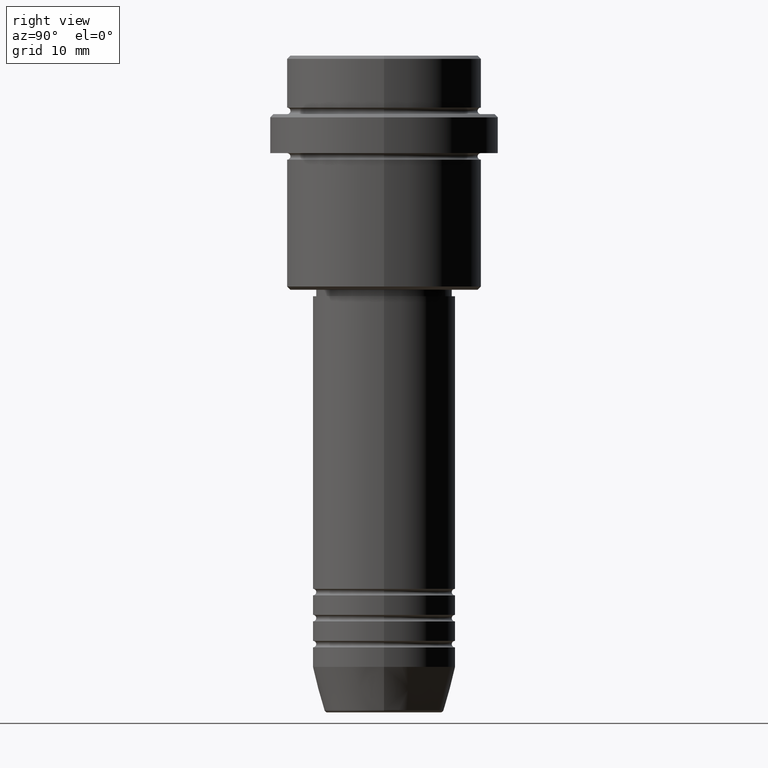
[diagram: clean part render]
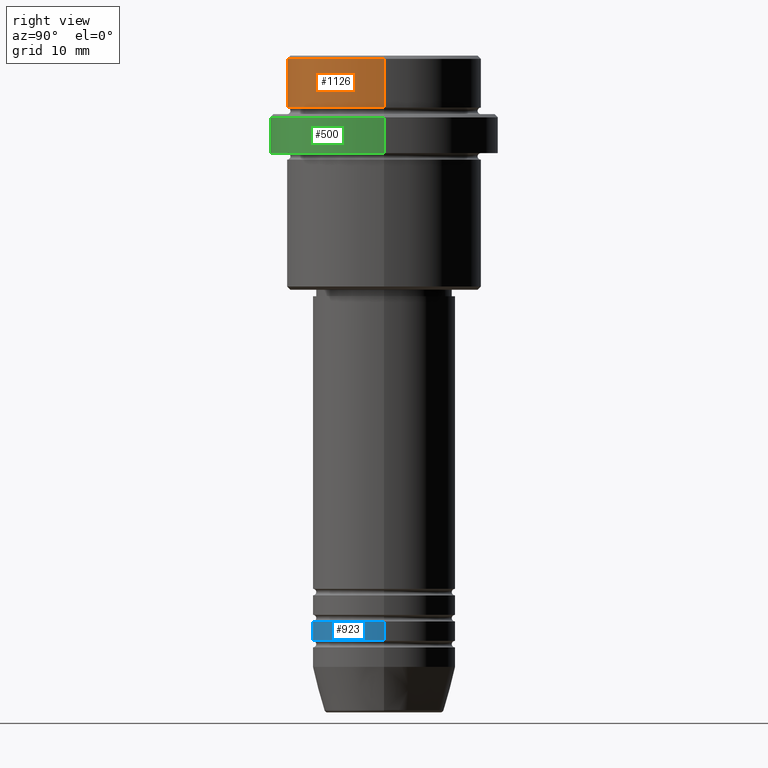
[diagram: same view with three faces highlighted in distinct colors, each labeled with its STEP entity id]
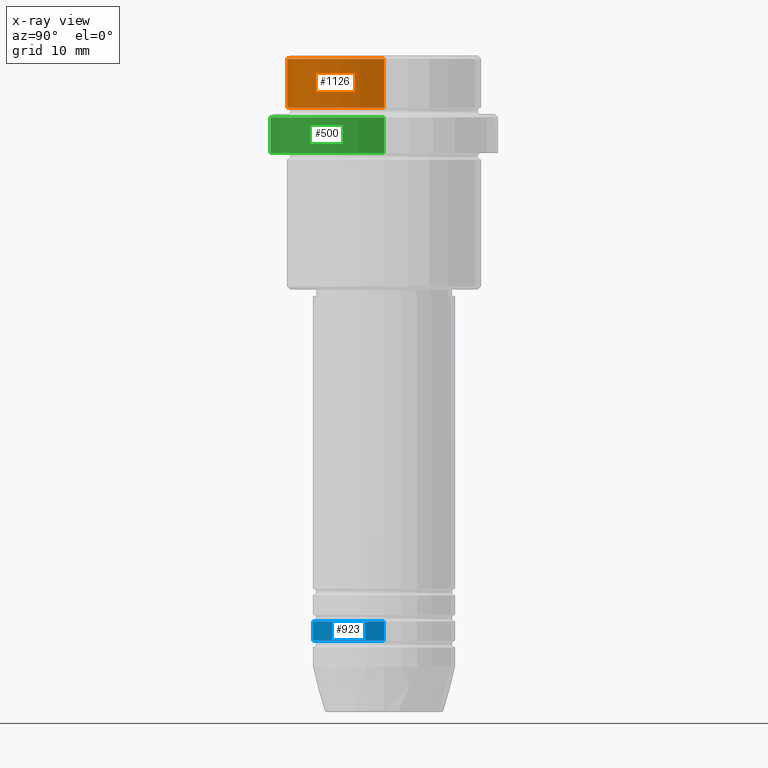
[diagram: x-ray of the same camera — body ghosted, the three highlighted faces saturated]
A machine part, right view with three faces highlighted in distinct colors.
The next image is the same camera in x-ray (body ghosted, the three faces saturated) — at least one of them is partly hidden behind the body in this view.
Their STEP definitions:

[orange] entity #1126 — the highlighted cylindrical surface (partial cylindrical patch) has radius 15 mm, axis along (-0, -0, 1).
#2 = DIRECTION ( 'NONE',  ( 1.000000000000000000, 0.000000000000000000, 0.000000000000000000 ) ) ;
#17 = DIRECTION ( 'NONE',  ( -0.000000000000000000, -0.000000000000000000, 1.000000000000000000 ) ) ;
#79 = CARTESIAN_POINT ( 'NONE',  ( -15.00000000000000000, 1.836970198721029589E-15, -0.4999999999999692468 ) ) ;
#110 = ORIENTED_EDGE ( 'NONE', *, *, #1355, .T. ) ;
#147 = CARTESIAN_POINT ( 'NONE',  ( -15.00000000000000000, 1.836970198721029589E-15, 0.000000000000000000 ) ) ;
#152 = DIRECTION ( 'NONE',  ( 1.000000000000000000, 0.000000000000000000, 0.000000000000000000 ) ) ;
#220 = LINE ( 'NONE', #533, #1142 ) ;
#283 = CARTESIAN_POINT ( 'NONE',  ( -15.00000000000000000, 1.836970198721029589E-15, -7.999999999999998224 ) ) ;
#306 = FACE_OUTER_BOUND ( 'NONE', #1070, .T. ) ;
#355 = ORIENTED_EDGE ( 'NONE', *, *, #390, .T. ) ;
#357 = CARTESIAN_POINT ( 'NONE',  ( 0.000000000000000000, 0.000000000000000000, -0.4999999999999692468 ) ) ;
#390 = EDGE_CURVE ( 'NONE', #1385, #561, #1325, .T. ) ;
#438 = DIRECTION ( 'NONE',  ( -0.000000000000000000, -0.000000000000000000, 1.000000000000000000 ) ) ;
#531 = CARTESIAN_POINT ( 'NONE',  ( 15.00000000000000000, 0.000000000000000000, -7.999999999999998224 ) ) ;
#533 = CARTESIAN_POINT ( 'NONE',  ( 15.00000000000000000, 0.000000000000000000, 0.000000000000000000 ) ) ;
#547 = VECTOR ( 'NONE', #17, 1000.000000000000000 ) ;
#561 = VERTEX_POINT ( 'NONE', #79 ) ;
#574 = DIRECTION ( 'NONE',  ( 0.000000000000000000, 0.000000000000000000, -1.000000000000000000 ) ) ;
#661 = DIRECTION ( 'NONE',  ( -0.000000000000000000, -0.000000000000000000, 1.000000000000000000 ) ) ;
#695 = DIRECTION ( 'NONE',  ( -0.000000000000000000, -0.000000000000000000, 1.000000000000000000 ) ) ;
#789 = EDGE_CURVE ( 'NONE', #1130, #1385, #220, .T. ) ;
#794 = LINE ( 'NONE', #147, #547 ) ;
#837 = ORIENTED_EDGE ( 'NONE', *, *, #852, .F. ) ;
#852 = EDGE_CURVE ( 'NONE', #1047, #561, #794, .T. ) ;
#975 = CYLINDRICAL_SURFACE ( 'NONE', #1123, 15.00000000000000000 ) ;
#1033 = AXIS2_PLACEMENT_3D ( 'NONE', #357, #574, #1239 ) ;
#1047 = VERTEX_POINT ( 'NONE', #283 ) ;
#1070 = EDGE_LOOP ( 'NONE', ( #837, #110, #1284, #355 ) ) ;
#1079 = CARTESIAN_POINT ( 'NONE',  ( 0.000000000000000000, 0.000000000000000000, 0.000000000000000000 ) ) ;
#1123 = AXIS2_PLACEMENT_3D ( 'NONE', #1079, #438, #2 ) ;
#1126 = ADVANCED_FACE ( 'NONE', ( #306 ), #975, .T. ) ;
#1130 = VERTEX_POINT ( 'NONE', #531 ) ;
#1142 = VECTOR ( 'NONE', #661, 1000.000000000000000 ) ;
#1185 = CARTESIAN_POINT ( 'NONE',  ( 15.00000000000000000, 0.000000000000000000, -0.4999999999999692468 ) ) ;
#1239 = DIRECTION ( 'NONE',  ( 1.000000000000000000, 0.000000000000000000, 0.000000000000000000 ) ) ;
#1284 = ORIENTED_EDGE ( 'NONE', *, *, #789, .T. ) ;
#1300 = AXIS2_PLACEMENT_3D ( 'NONE', #1344, #695, #152 ) ;
#1325 = CIRCLE ( 'NONE', #1033, 15.00000000000000000 ) ;
#1344 = CARTESIAN_POINT ( 'NONE',  ( 0.000000000000000000, 0.000000000000000000, -7.999999999999998224 ) ) ;
#1355 = EDGE_CURVE ( 'NONE', #1047, #1130, #1377, .T. ) ;
#1377 = CIRCLE ( 'NONE', #1300, 15.00000000000000000 ) ;
#1385 = VERTEX_POINT ( 'NONE', #1185 ) ;

[blue] entity #923 — the highlighted cylindrical surface (partial cylindrical patch) has radius 11 mm, axis along (-0, -0, 1).
#48 = AXIS2_PLACEMENT_3D ( 'NONE', #1179, #434, #966 ) ;
#64 = VECTOR ( 'NONE', #592, 1000.000000000000000 ) ;
#66 = EDGE_CURVE ( 'NONE', #470, #579, #492, .T. ) ;
#171 = EDGE_LOOP ( 'NONE', ( #815, #392, #1343, #317 ) ) ;
#187 = VECTOR ( 'NONE', #843, 1000.000000000000000 ) ;
#193 = CARTESIAN_POINT ( 'NONE',  ( -11.00000000000000000, 1.347111479062088405E-15, -86.99999999999988631 ) ) ;
#229 = AXIS2_PLACEMENT_3D ( 'NONE', #1323, #880, #293 ) ;
#242 = DIRECTION ( 'NONE',  ( 1.000000000000000000, 0.000000000000000000, 0.000000000000000000 ) ) ;
#250 = EDGE_CURVE ( 'NONE', #470, #740, #981, .T. ) ;
#267 = VERTEX_POINT ( 'NONE', #655 ) ;
#293 = DIRECTION ( 'NONE',  ( 1.000000000000000000, 0.000000000000000000, 0.000000000000000000 ) ) ;
#317 = ORIENTED_EDGE ( 'NONE', *, *, #706, .F. ) ;
#388 = CARTESIAN_POINT ( 'NONE',  ( -11.00000000000000000, 1.347111479062088405E-15, 0.000000000000000000 ) ) ;
#392 = ORIENTED_EDGE ( 'NONE', *, *, #250, .T. ) ;
#434 = DIRECTION ( 'NONE',  ( -0.000000000000000000, -0.000000000000000000, 1.000000000000000000 ) ) ;
#470 = VERTEX_POINT ( 'NONE', #1132 ) ;
#492 = LINE ( 'NONE', #388, #64 ) ;
#579 = VERTEX_POINT ( 'NONE', #193 ) ;
#592 = DIRECTION ( 'NONE',  ( -0.000000000000000000, -0.000000000000000000, 1.000000000000000000 ) ) ;
#641 = CIRCLE ( 'NONE', #48, 11.00000000000000000 ) ;
#647 = CARTESIAN_POINT ( 'NONE',  ( 11.00000000000000000, 0.000000000000000000, -89.99999999999988631 ) ) ;
#655 = CARTESIAN_POINT ( 'NONE',  ( 11.00000000000000000, 0.000000000000000000, -86.99999999999988631 ) ) ;
#706 = EDGE_CURVE ( 'NONE', #579, #267, #641, .T. ) ;
#740 = VERTEX_POINT ( 'NONE', #647 ) ;
#815 = ORIENTED_EDGE ( 'NONE', *, *, #66, .F. ) ;
#822 = LINE ( 'NONE', #826, #187 ) ;
#826 = CARTESIAN_POINT ( 'NONE',  ( 11.00000000000000000, 0.000000000000000000, 0.000000000000000000 ) ) ;
#843 = DIRECTION ( 'NONE',  ( -0.000000000000000000, -0.000000000000000000, 1.000000000000000000 ) ) ;
#880 = DIRECTION ( 'NONE',  ( -0.000000000000000000, -0.000000000000000000, 1.000000000000000000 ) ) ;
#923 = ADVANCED_FACE ( 'NONE', ( #1137 ), #1333, .T. ) ;
#966 = DIRECTION ( 'NONE',  ( 1.000000000000000000, 0.000000000000000000, 0.000000000000000000 ) ) ;
#981 = CIRCLE ( 'NONE', #229, 11.00000000000000000 ) ;
#1019 = CARTESIAN_POINT ( 'NONE',  ( 0.000000000000000000, 0.000000000000000000, 0.000000000000000000 ) ) ;
#1027 = DIRECTION ( 'NONE',  ( -0.000000000000000000, -0.000000000000000000, 1.000000000000000000 ) ) ;
#1068 = EDGE_CURVE ( 'NONE', #740, #267, #822, .T. ) ;
#1132 = CARTESIAN_POINT ( 'NONE',  ( -11.00000000000000000, 1.347111479062088405E-15, -89.99999999999988631 ) ) ;
#1137 = FACE_OUTER_BOUND ( 'NONE', #171, .T. ) ;
#1179 = CARTESIAN_POINT ( 'NONE',  ( 0.000000000000000000, 0.000000000000000000, -86.99999999999988631 ) ) ;
#1323 = CARTESIAN_POINT ( 'NONE',  ( 0.000000000000000000, 0.000000000000000000, -89.99999999999988631 ) ) ;
#1333 = CYLINDRICAL_SURFACE ( 'NONE', #1394, 11.00000000000000000 ) ;
#1343 = ORIENTED_EDGE ( 'NONE', *, *, #1068, .T. ) ;
#1394 = AXIS2_PLACEMENT_3D ( 'NONE', #1019, #1027, #242 ) ;

[green] entity #500 — the highlighted cylindrical surface (partial cylindrical patch) has radius 17.5 mm, axis along (-0, -0, 1).
#81 = CARTESIAN_POINT ( 'NONE',  ( -17.50000000000000000, 2.143131898507868248E-15, 0.000000000000000000 ) ) ;
#83 = DIRECTION ( 'NONE',  ( 1.000000000000000000, 0.000000000000000000, 0.000000000000000000 ) ) ;
#90 = CARTESIAN_POINT ( 'NONE',  ( 0.000000000000000000, 0.000000000000000000, -15.00000000000000000 ) ) ;
#168 = ORIENTED_EDGE ( 'NONE', *, *, #1395, .T. ) ;
#170 = DIRECTION ( 'NONE',  ( 0.000000000000000000, 0.000000000000000000, -1.000000000000000000 ) ) ;
#175 = EDGE_CURVE ( 'NONE', #856, #331, #851, .T. ) ;
#186 = DIRECTION ( 'NONE',  ( -0.000000000000000000, -0.000000000000000000, 1.000000000000000000 ) ) ;
#194 = VERTEX_POINT ( 'NONE', #401 ) ;
#198 = DIRECTION ( 'NONE',  ( -0.000000000000000000, -0.000000000000000000, 1.000000000000000000 ) ) ;
#201 = VERTEX_POINT ( 'NONE', #989 ) ;
#221 = CARTESIAN_POINT ( 'NONE',  ( -17.50000000000000000, 2.143131898507868248E-15, -9.500000000000000000 ) ) ;
#273 = AXIS2_PLACEMENT_3D ( 'NONE', #90, #198, #1314 ) ;
#285 = CARTESIAN_POINT ( 'NONE',  ( 0.000000000000000000, 0.000000000000000000, 0.000000000000000000 ) ) ;
#305 = ORIENTED_EDGE ( 'NONE', *, *, #1043, .F. ) ;
#331 = VERTEX_POINT ( 'NONE', #221 ) ;
#401 = CARTESIAN_POINT ( 'NONE',  ( 17.50000000000000000, 0.000000000000000000, -15.00000000000000000 ) ) ;
#500 = ADVANCED_FACE ( 'NONE', ( #850 ), #606, .T. ) ;
#606 = CYLINDRICAL_SURFACE ( 'NONE', #780, 17.50000000000000000 ) ;
#607 = DIRECTION ( 'NONE',  ( 1.000000000000000000, 0.000000000000000000, 0.000000000000000000 ) ) ;
#653 = ORIENTED_EDGE ( 'NONE', *, *, #761, .T. ) ;
#658 = ORIENTED_EDGE ( 'NONE', *, *, #175, .T. ) ;
#761 = EDGE_CURVE ( 'NONE', #201, #194, #783, .T. ) ;
#780 = AXIS2_PLACEMENT_3D ( 'NONE', #285, #1383, #83 ) ;
#783 = CIRCLE ( 'NONE', #273, 17.50000000000000000 ) ;
#804 = AXIS2_PLACEMENT_3D ( 'NONE', #1147, #170, #607 ) ;
#805 = VECTOR ( 'NONE', #1207, 1000.000000000000000 ) ;
#812 = VECTOR ( 'NONE', #186, 1000.000000000000000 ) ;
#850 = FACE_OUTER_BOUND ( 'NONE', #1128, .T. ) ;
#851 = CIRCLE ( 'NONE', #804, 17.50000000000000000 ) ;
#856 = VERTEX_POINT ( 'NONE', #914 ) ;
#914 = CARTESIAN_POINT ( 'NONE',  ( 17.50000000000000000, 0.000000000000000000, -9.500000000000000000 ) ) ;
#989 = CARTESIAN_POINT ( 'NONE',  ( -17.50000000000000000, 2.143131898507868248E-15, -15.00000000000000000 ) ) ;
#1043 = EDGE_CURVE ( 'NONE', #201, #331, #1066, .T. ) ;
#1066 = LINE ( 'NONE', #81, #812 ) ;
#1085 = LINE ( 'NONE', #1193, #805 ) ;
#1128 = EDGE_LOOP ( 'NONE', ( #305, #653, #168, #658 ) ) ;
#1147 = CARTESIAN_POINT ( 'NONE',  ( 0.000000000000000000, 0.000000000000000000, -9.500000000000000000 ) ) ;
#1193 = CARTESIAN_POINT ( 'NONE',  ( 17.50000000000000000, 0.000000000000000000, 0.000000000000000000 ) ) ;
#1207 = DIRECTION ( 'NONE',  ( -0.000000000000000000, -0.000000000000000000, 1.000000000000000000 ) ) ;
#1314 = DIRECTION ( 'NONE',  ( 1.000000000000000000, 0.000000000000000000, 0.000000000000000000 ) ) ;
#1383 = DIRECTION ( 'NONE',  ( -0.000000000000000000, -0.000000000000000000, 1.000000000000000000 ) ) ;
#1395 = EDGE_CURVE ( 'NONE', #194, #856, #1085, .T. ) ;